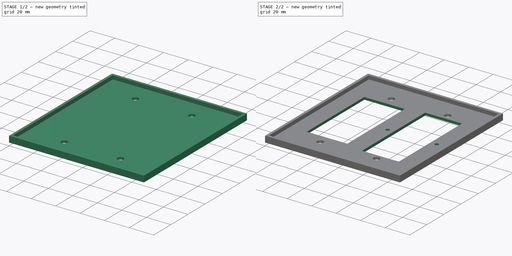
[diagram: build sequence overview — one tinted view per stage of 2, left to right]
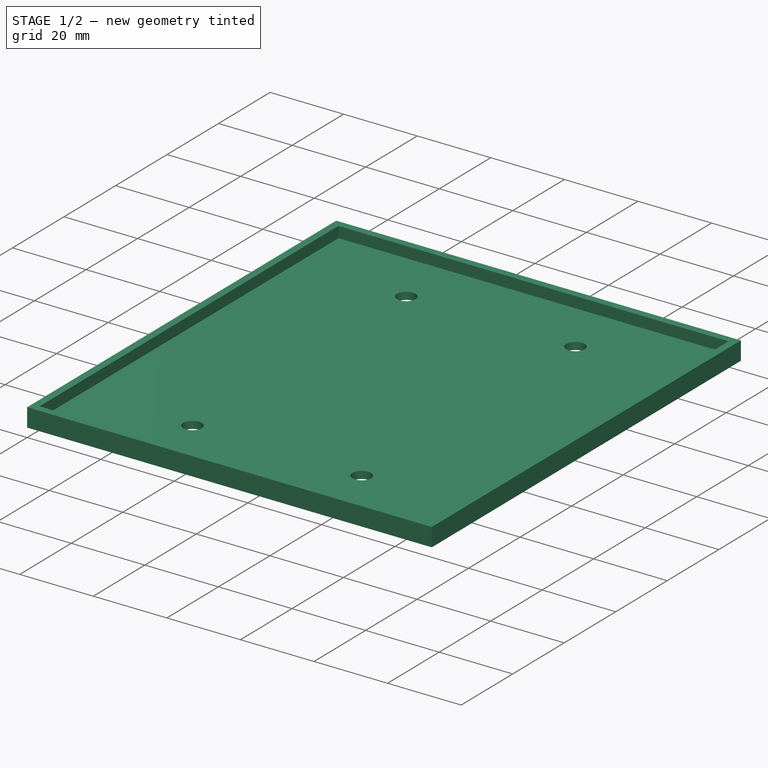
[diagram: stage 1 of 2 — iso view after this stage's code; geometry added in this stage tinted green]
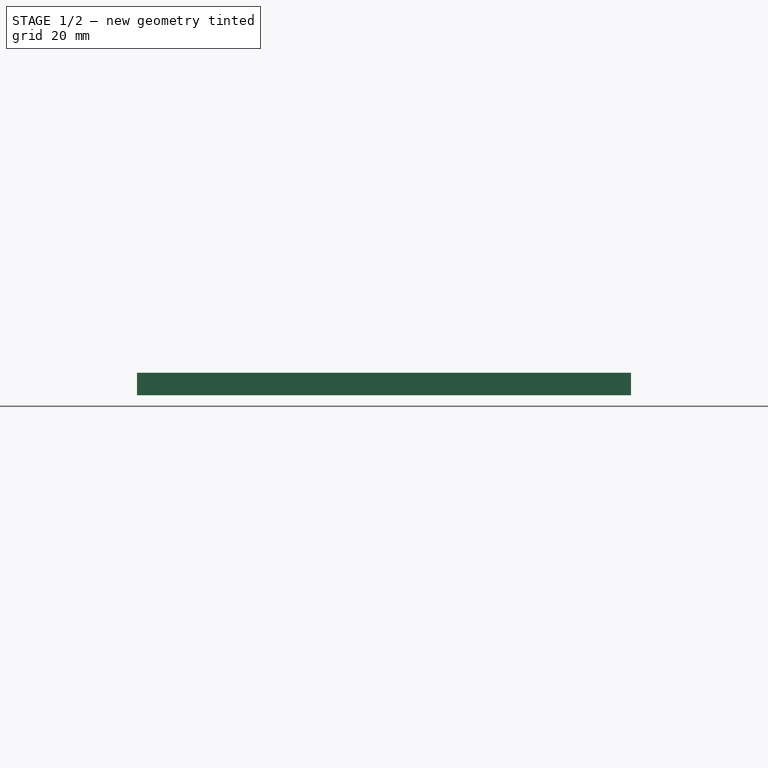
[diagram: stage 1 of 2 — front view after this stage's code; geometry added in this stage tinted green]
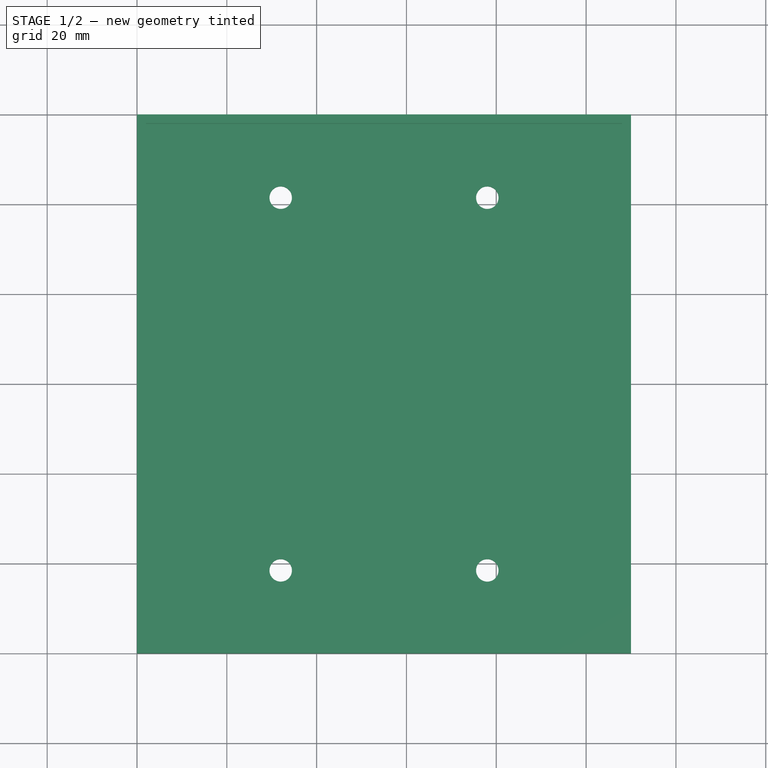
[diagram: stage 1 of 2 — top view after this stage's code; geometry added in this stage tinted green]
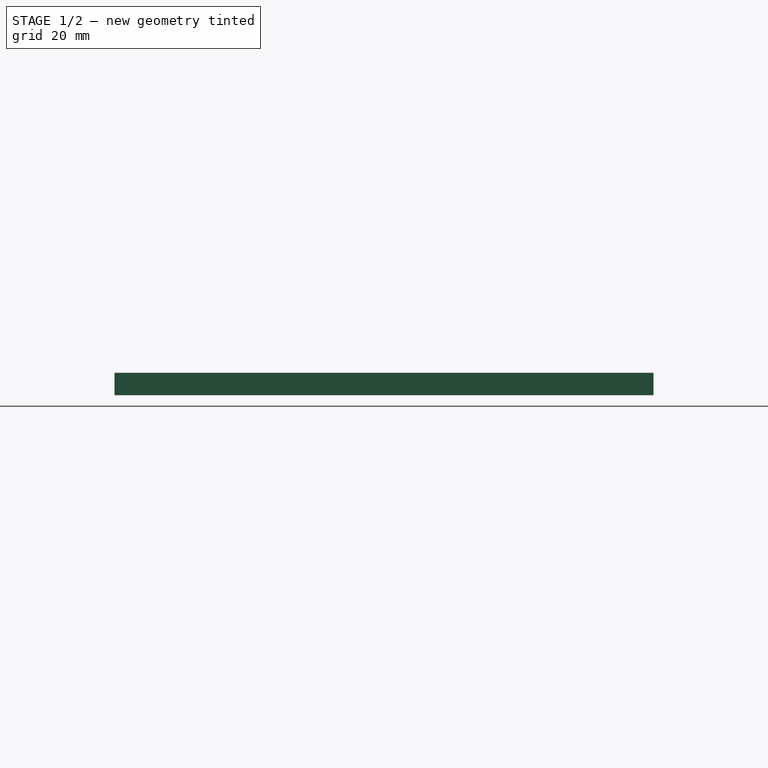
[diagram: stage 1 of 2 — right view after this stage's code; geometry added in this stage tinted green]
FCSTD DOCUMENT  (FreeCAD 0.15R4671 (Git))
Label: PowerPanel
License: All rights reserved
LicenseURL: http://en.wikipedia.org/wiki/All_rights_reserved
objects: Sketcher::SketchObject×3, PartDesign::Pocket×2, PartDesign::Pad×1
note: 9 computed .brp shape members not serialized (recipe doc carries the construction recipe); baked Part::Feature solids carry a one-line shape summary decoded from their .brp

FEATURE [Sketcher::SketchObject] Sketch
  sketch-geometry (8):
    g0: LineSegment StartX=0 StartY=0 StartZ=0 EndX=110 EndY=0 EndZ=0
    g1: LineSegment StartX=110 StartY=0 StartZ=0 EndX=110 EndY=120 EndZ=0
    g2: LineSegment StartX=110 StartY=120 StartZ=0 EndX=0 EndY=120 EndZ=0
    g3: LineSegment StartX=0 StartY=120 StartZ=0 EndX=0 EndY=0 EndZ=0
    g4: Circle CenterX=32 CenterY=101.5 CenterZ=0 NormalX=0 NormalY=0 NormalZ=1 Radius=2.5
    g5: Circle CenterX=78 CenterY=101.5 CenterZ=0 NormalX=0 NormalY=0 NormalZ=1 Radius=2.5
    g6: Circle CenterX=32 CenterY=18.5 CenterZ=0 NormalX=0 NormalY=0 NormalZ=1 Radius=2.5
    g7: Circle CenterX=78 CenterY=18.5 CenterZ=0 NormalX=0 NormalY=0 NormalZ=1 Radius=2.5
  constraints (23):
    c: Coincident(g0,g1)
    c: Coincident(g1,g2)
    c: Coincident(g2,g3)
    c: Coincident(g3,g0)
    c: Horizontal(g0)
    c: Horizontal(g2)
    c: Vertical(g1)
    c: Vertical(g3)
    c: Coincident(g0,g-1)
    c: DistanceY(g3) = -120
    c: DistanceX(g0) = 110
    c: DistanceX(g6,g7) = 46
    c: DistanceX(g4,g5) = 46
    c: DistanceY(g4,g6) = -83
    c: DistanceY(g5,g7) = -83
    c: DistanceY(g7,g0) = -18.5
    c: DistanceY(g-1,g6) = 18.5
    c: DistanceX(g4,g2) = -32
    c: DistanceX(g-1,g6) = 32
    c: Equal(g5,g4)
    c: Equal(g4,g6)
    c: Equal(g6,g7)
    c: Radius(g4) = 2.5
FEATURE [PartDesign::Pad] Pad
  Length = 5
  Length2 = 100
  Sketch = -> Sketch
  Type = 0
FEATURE [Sketcher::SketchObject] Sketch001
  Placement = pos=(0,0,5) rot=(0,0,1;0rad)
  Support = -> Pad [Face10]
  sketch-geometry (4):
    g0: LineSegment StartX=2 StartY=2 StartZ=0 EndX=108 EndY=2 EndZ=0
    g1: LineSegment StartX=108 StartY=2 StartZ=0 EndX=108 EndY=118 EndZ=0
    g2: LineSegment StartX=108 StartY=118 StartZ=0 EndX=2 EndY=118 EndZ=0
    g3: LineSegment StartX=2 StartY=118 StartZ=0 EndX=2 EndY=2 EndZ=0
  constraints (12):
    c: Coincident(g0,g1)
    c: Coincident(g1,g2)
    c: Coincident(g2,g3)
    c: Coincident(g3,g0)
    c: Horizontal(g0)
    c: Horizontal(g2)
    c: Vertical(g1)
    c: Vertical(g3)
    c: DistanceX(g0) = 106
    c: DistanceY(g1) = 116
    c: DistanceY(g-1,g0) = 2
    c: DistanceX(g-1,g0) = 2
FEATURE [PartDesign::Pocket] Pocket
  Length = 3
  Sketch = -> Sketch001
  Type = 0
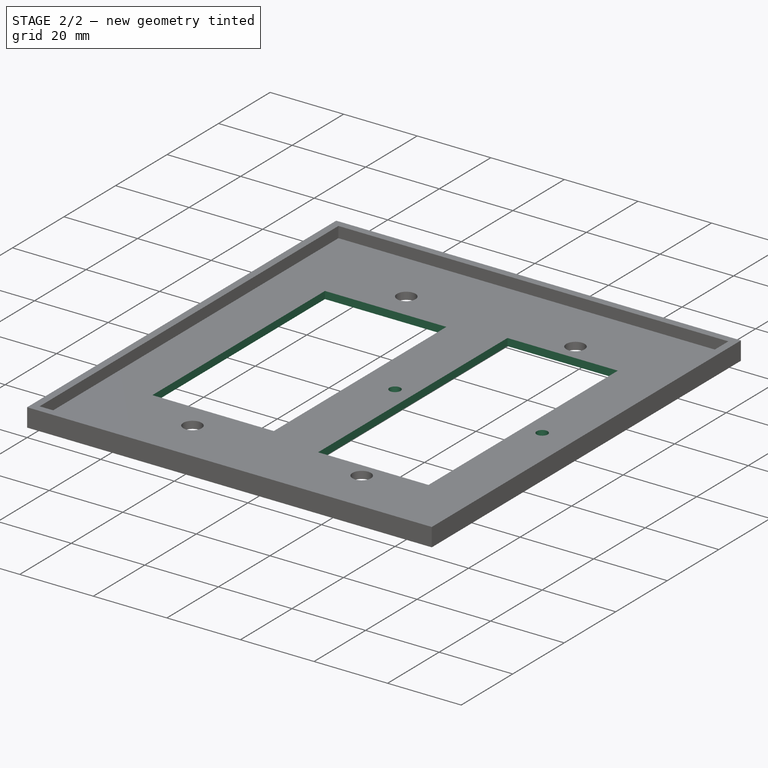
[diagram: stage 2 of 2 — iso view after this stage's code; geometry added in this stage tinted green]
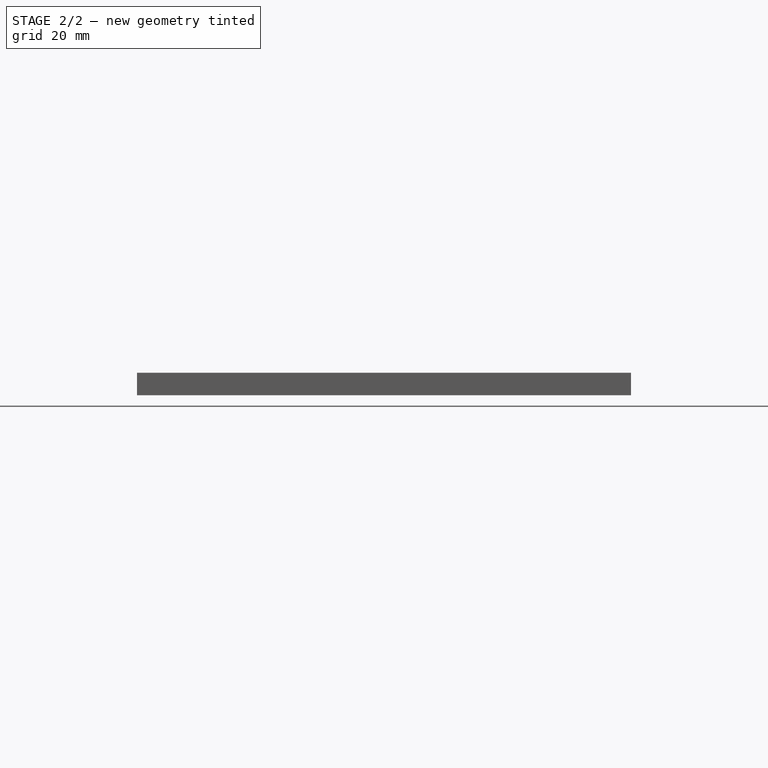
[diagram: stage 2 of 2 — front view after this stage's code; geometry added in this stage tinted green]
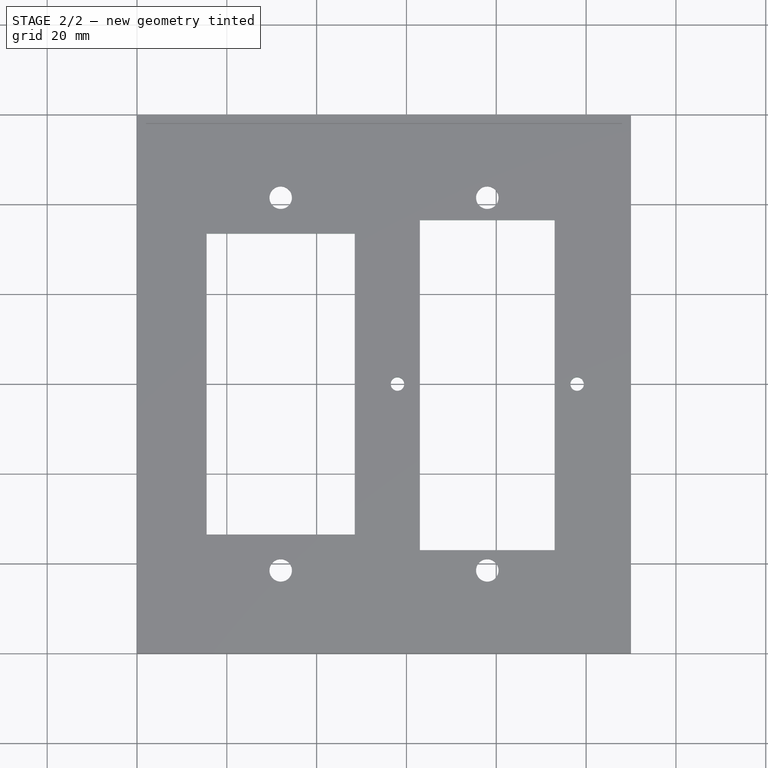
[diagram: stage 2 of 2 — top view after this stage's code; geometry added in this stage tinted green]
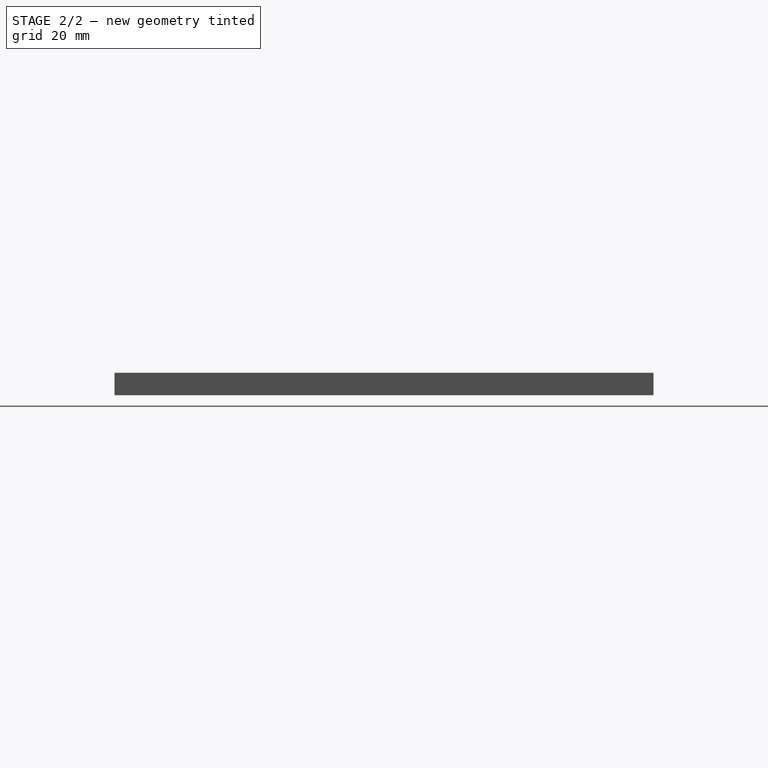
[diagram: stage 2 of 2 — right view after this stage's code; geometry added in this stage tinted green]
FEATURE [Sketcher::SketchObject] Sketch002
  Placement = pos=(0,0,0) rot=(1,0,0;3.14159rad)
  Support = -> Pocket [Face4]
  sketch-geometry (10):
    g0: LineSegment StartX=15.5 StartY=-26.5 StartZ=0 EndX=48.5 EndY=-26.5 EndZ=0
    g1: LineSegment StartX=48.5 StartY=-26.5 StartZ=0 EndX=48.5 EndY=-93.5 EndZ=0
    g2: LineSegment StartX=48.5 StartY=-93.5 StartZ=0 EndX=15.5 EndY=-93.5 EndZ=0
    g3: LineSegment StartX=15.5 StartY=-93.5 StartZ=0 EndX=15.5 EndY=-26.5 EndZ=0
    g4: LineSegment StartX=63 StartY=-23 StartZ=0 EndX=93 EndY=-23 EndZ=0
    g5: LineSegment StartX=93 StartY=-23 StartZ=0 EndX=93 EndY=-96.5 EndZ=0
    g6: LineSegment StartX=93 StartY=-96.5 StartZ=0 EndX=63 EndY=-96.5 EndZ=0
    g7: LineSegment StartX=63 StartY=-96.5 StartZ=0 EndX=63 EndY=-23 EndZ=0
    g8: Circle CenterX=58 CenterY=-60 CenterZ=0 NormalX=0 NormalY=0 NormalZ=1 Radius=1.5
    g9: Circle CenterX=98 CenterY=-60 CenterZ=0 NormalX=0 NormalY=0 NormalZ=1 Radius=1.5
  constraints (30):
    c: Coincident(g0,g1)
    c: Coincident(g1,g2)
    c: Coincident(g2,g3)
    c: Coincident(g3,g0)
    c: Horizontal(g0)
    c: Horizontal(g2)
    c: Vertical(g1)
    c: Vertical(g3)
    c: Coincident(g4,g5)
    c: Coincident(g5,g6)
    c: Coincident(g6,g7)
    c: Coincident(g7,g4)
    c: Horizontal(g4)
    c: Horizontal(g6)
    c: Vertical(g5)
    c: Vertical(g7)
    c: DistanceX(g4) = 30
    c: DistanceX(g0) = 33
    c: DistanceY(g3) = 67
    c: DistanceY(g7) = 73.5
    c: DistanceX(g-1,g0) = 15.5
    c: DistanceY(g-1,g0) = -26.5
    c: DistanceY(g-1,g4) = -23
    c: DistanceX(g9,g8) = -40
    c: Equal(g8,g9)
    c: DistanceY(g-1,g8) = -60
    c: DistanceY(g-1,g9) = -60
    c: DistanceX(g6,g8) = -5
    c: Radius(g8) = 1.5
    c: DistanceX(g0,g4) = 14.5
FEATURE [PartDesign::Pocket] Pocket001
  Length = 5
  Sketch = -> Sketch002
  Type = 1
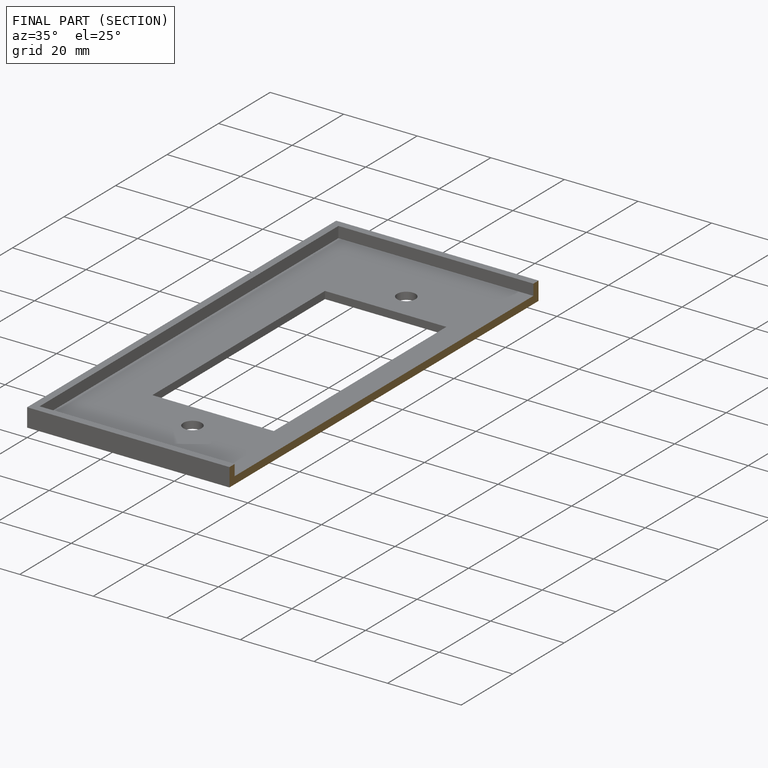
[diagram: finished part — half-section view (interior)]
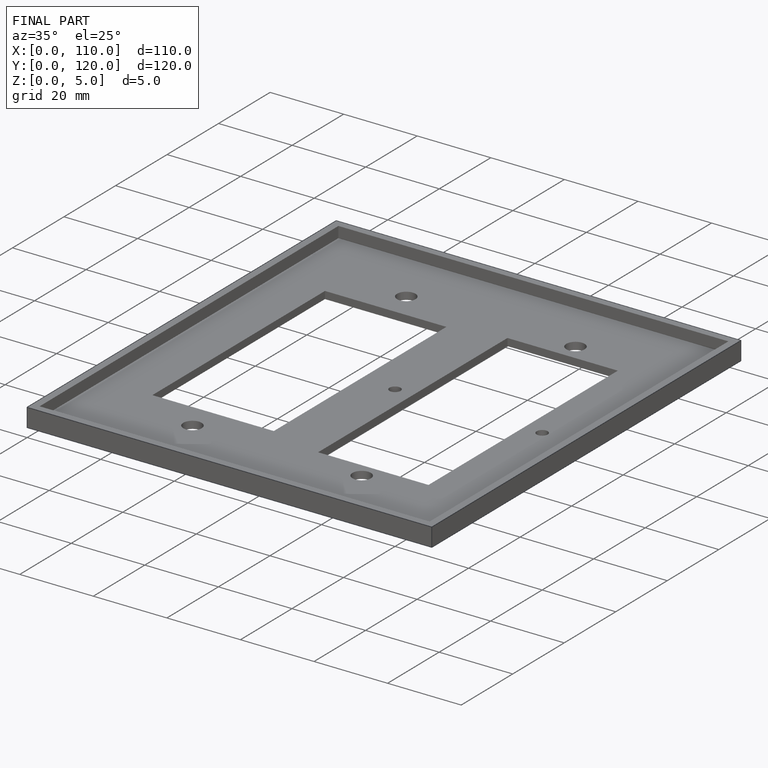
[diagram: finished part — iso view with bounding-box wireframe]
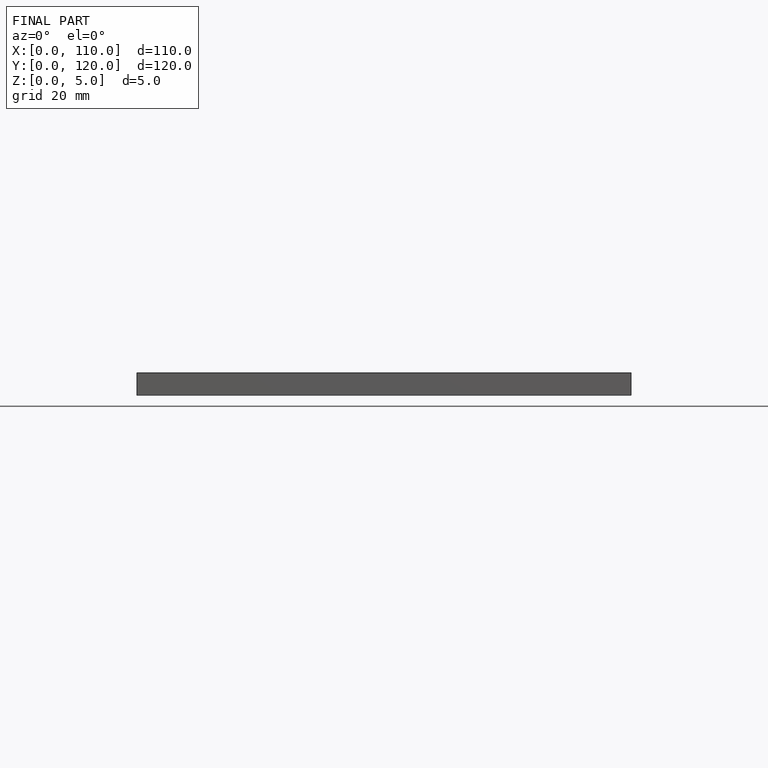
[diagram: finished part — front view with bounding-box wireframe]
